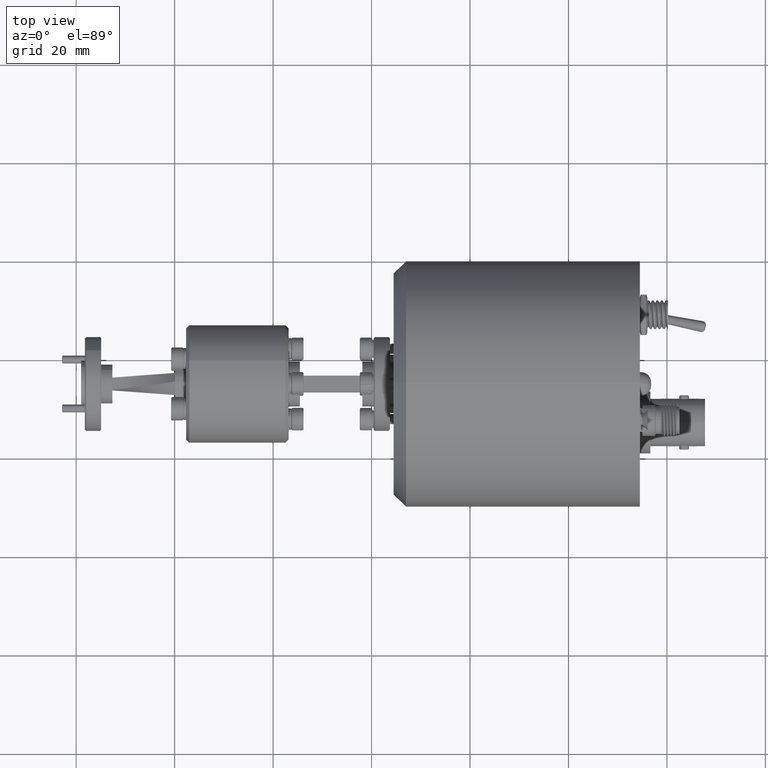
[diagram: clean part render]
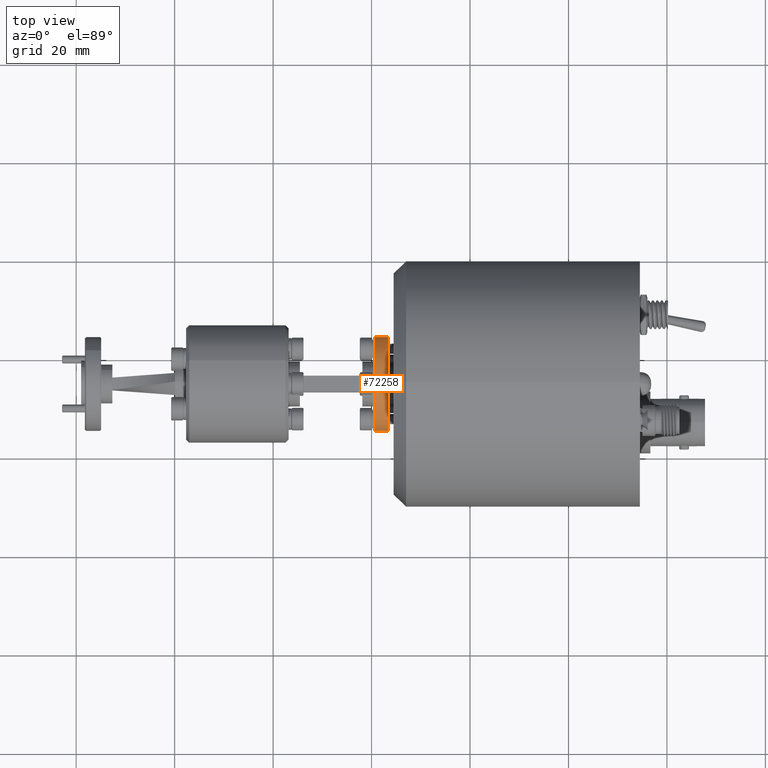
[diagram: same view with one face highlighted and labeled with its STEP entity id]
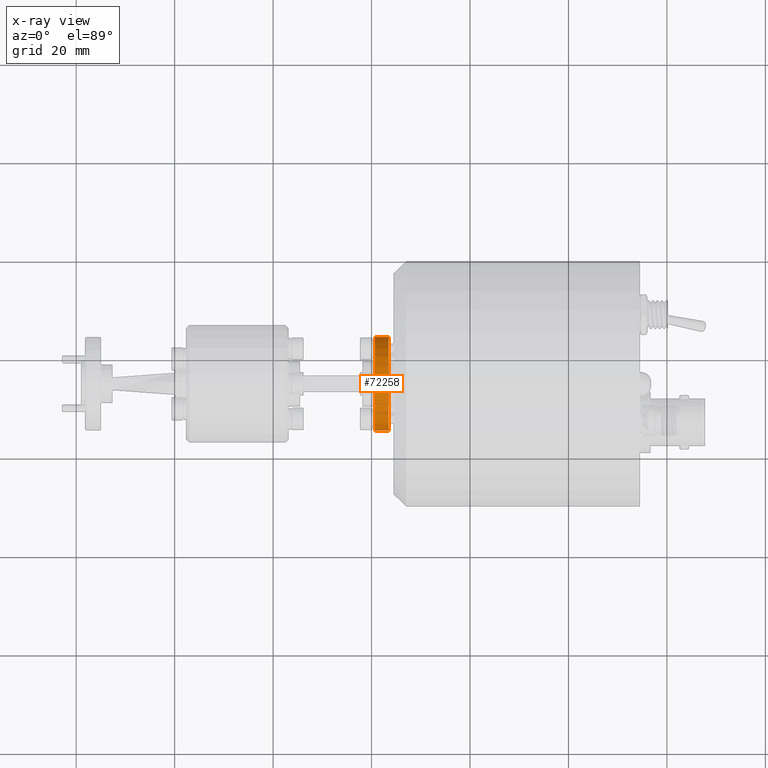
[diagram: x-ray of the same camera — body ghosted, the highlighted face saturated]
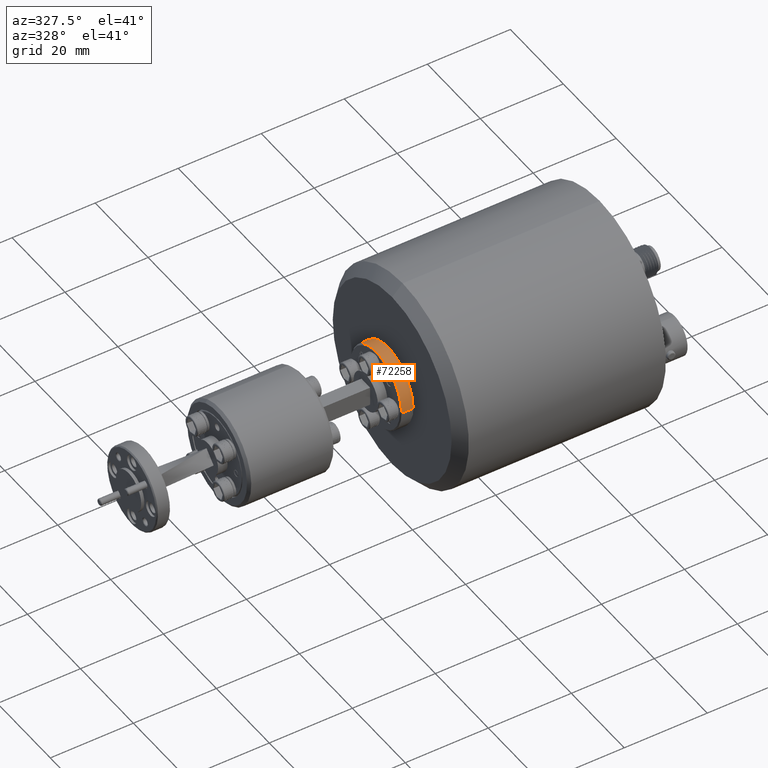
[diagram: same view with one face highlighted and labeled with its STEP entity id]
A machine part, top view. The second image highlights one B-rep face of the part: STEP entity #72258.
The next image is the same camera in x-ray: the body ghosted, the highlighted face saturated — about 0% of this face is hidden behind the body in this view.
A second angle (auxiliary view) of the same face is appended — the face is thin or edge-on in the first view.
In plain terms, the highlighted cylindrical surface (partial cylindrical patch) has radius 9.525 mm, axis along (1, 0, -0).
Its self-contained STEP definition (entity closure, byte-faithful):
#707 = ORIENTED_EDGE ( 'NONE', *, *, #95815, .T. ) ;
#2905 = DIRECTION ( 'NONE',  ( -1.365923996832132800E-016, 1.000000000000000000, 0.0000000000000000000 ) ) ;
#7419 = VERTEX_POINT ( 'NONE', #25317 ) ;
#7857 = CARTESIAN_POINT ( 'NONE',  ( 0.6808023996339464000, 25.26358904316376600, 36.62254942233093400 ) ) ;
#9112 = CIRCLE ( 'NONE', #70957, 9.524999999999991500 ) ;
#13771 = LINE ( 'NONE', #96396, #92379 ) ;
#19792 = CARTESIAN_POINT ( 'NONE',  ( 3.474802399633938300, 44.31358904316375200, 36.62254942233093400 ) ) ;
#23754 = DIRECTION ( 'NONE',  ( 1.000000000000000000, 1.224646799147353500E-016, -0.0000000000000000000 ) ) ;
#23779 = CARTESIAN_POINT ( 'NONE',  ( -20.90919760037079200, 44.31358904316375200, 36.62254942233093400 ) ) ;
#24867 = VERTEX_POINT ( 'NONE', #19792 ) ;
#25317 = CARTESIAN_POINT ( 'NONE',  ( 3.474802399633941000, 25.26358904316376600, 36.62254942233093400 ) ) ;
#26332 = DIRECTION ( 'NONE',  ( -1.000000000000000000, -1.224646799147339200E-016, 0.0000000000000000000 ) ) ;
#29071 = CARTESIAN_POINT ( 'NONE',  ( -20.90919760037079200, 34.78858904316376100, 36.62254942233093400 ) ) ;
#31649 = FACE_OUTER_BOUND ( 'NONE', #88915, .T. ) ;
#36883 = DIRECTION ( 'NONE',  ( 1.000000000000000000, 1.224646799147353500E-016, -0.0000000000000000000 ) ) ;
#37135 = EDGE_CURVE ( 'NONE', #76687, #24867, #42650, .T. ) ;
#37666 = ORIENTED_EDGE ( 'NONE', *, *, #63883, .T. ) ;
#38603 = CARTESIAN_POINT ( 'NONE',  ( 0.6808023996339439600, 44.31358904316375200, 36.62254942233093400 ) ) ;
#38713 = CIRCLE ( 'NONE', #80705, 9.524999999999991500 ) ;
#41644 = DIRECTION ( 'NONE',  ( 1.000000000000000000, 1.224646799147353000E-016, -0.0000000000000000000 ) ) ;
#42650 = LINE ( 'NONE', #23779, #80735 ) ;
#49771 = CARTESIAN_POINT ( 'NONE',  ( 0.6808023996339451800, 34.78858904316376100, 36.62254942233093400 ) ) ;
#51275 = ORIENTED_EDGE ( 'NONE', *, *, #37135, .F. ) ;
#63334 = CYLINDRICAL_SURFACE ( 'NONE', #87666, 9.524999999999991500 ) ;
#63883 = EDGE_CURVE ( 'NONE', #65418, #7419, #13771, .T. ) ;
#65418 = VERTEX_POINT ( 'NONE', #7857 ) ;
#67514 = CARTESIAN_POINT ( 'NONE',  ( 3.474802399633939700, 34.78858904316376100, 36.62254942233093400 ) ) ;
#70957 = AXIS2_PLACEMENT_3D ( 'NONE', #49771, #41644, #82448 ) ;
#72258 = ADVANCED_FACE ( 'NONE', ( #31649 ), #63334, .T. ) ;
#76687 = VERTEX_POINT ( 'NONE', #38603 ) ;
#78900 = EDGE_CURVE ( 'NONE', #7419, #24867, #38713, .T. ) ;
#80153 = DIRECTION ( 'NONE',  ( 1.000000000000000000, 1.224646799147353500E-016, -0.0000000000000000000 ) ) ;
#80705 = AXIS2_PLACEMENT_3D ( 'NONE', #67514, #26332, #2905 ) ;
#80735 = VECTOR ( 'NONE', #80153, 1000.000000000000000 ) ;
#82448 = DIRECTION ( 'NONE',  ( 1.252096997096121600E-016, -1.000000000000000000, 0.0000000000000000000 ) ) ;
#87666 = AXIS2_PLACEMENT_3D ( 'NONE', #29071, #36883, #102068 ) ;
#88915 = EDGE_LOOP ( 'NONE', ( #707, #37666, #95138, #51275 ) ) ;
#92379 = VECTOR ( 'NONE', #23754, 1000.000000000000000 ) ;
#95138 = ORIENTED_EDGE ( 'NONE', *, *, #78900, .T. ) ;
#95815 = EDGE_CURVE ( 'NONE', #76687, #65418, #9112, .T. ) ;
#96396 = CARTESIAN_POINT ( 'NONE',  ( -20.90919760037079200, 25.26358904316376600, 36.62254942233093400 ) ) ;
#102068 = DIRECTION ( 'NONE',  ( 0.0000000000000000000, 1.000000000000000000, 0.0000000000000000000 ) ) ;